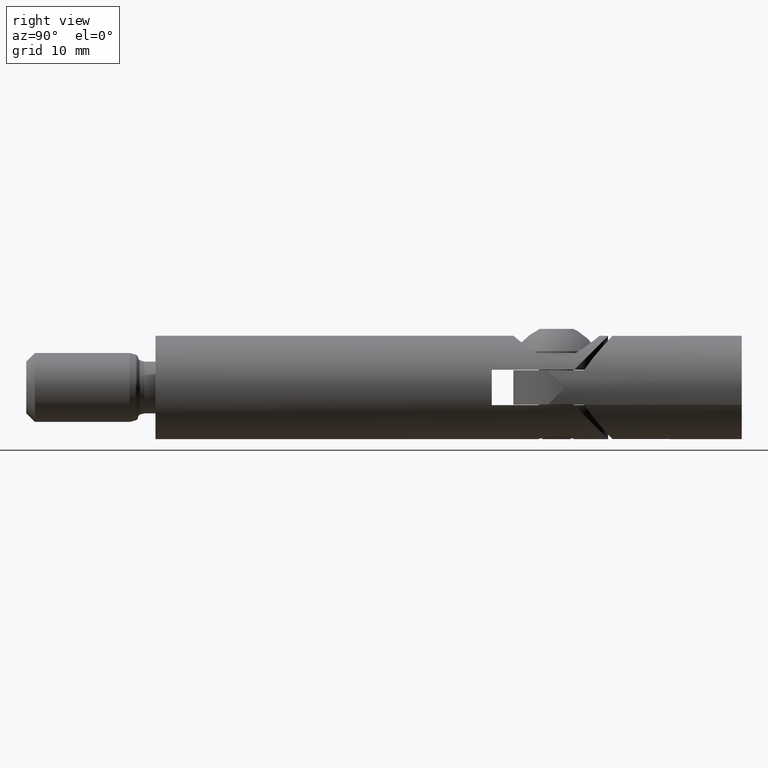
[diagram: clean part render]
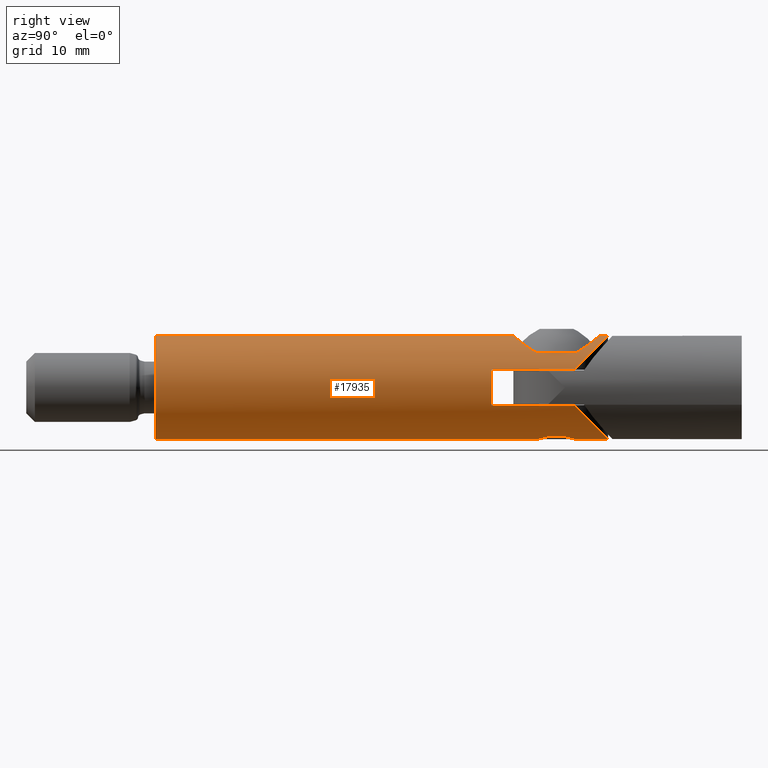
[diagram: same view with one face highlighted and labeled with its STEP entity id]
A machine part, right view. The second image highlights one B-rep face of the part: STEP entity #17935.
In plain terms, the highlighted cylindrical surface (bore or boss wall) has radius 6 mm, axis along (-0, -1, -0).
Its self-contained STEP definition (entity closure, byte-faithful):
#31 = CARTESIAN_POINT ( 'NONE',  ( -0.6799031944775870695, 44.50836888431911120, -5.962726470154969149 ) ) ;
#86 = CARTESIAN_POINT ( 'NONE',  ( 0.9337857770029903692, 44.61405670511413035, -5.928263369488837142 ) ) ;
#151 = CARTESIAN_POINT ( 'NONE',  ( -2.086440083120679301, 46.77565081770199384, -5.625620362231066984 ) ) ;
#194 = CARTESIAN_POINT ( 'NONE',  ( -5.638927202934988614, 48.54999999999994742, 2.049999999999950528 ) ) ;
#222 = CARTESIAN_POINT ( 'NONE',  ( -2.032103204105491834, 47.04751453096387337, -5.645475466979342549 ) ) ;
#510 = CARTESIAN_POINT ( 'NONE',  ( 0.9907526502935080082, 51.40715862449706464, 5.922818591520822018 ) ) ;
#524 = VECTOR ( 'NONE', #16107, 1000.000000000000000 ) ;
#561 = CARTESIAN_POINT ( 'NONE',  ( -4.272325727969628062, 43.86431156844031420, 4.223394625119321510 ) ) ;
#649 = CARTESIAN_POINT ( 'NONE',  ( 5.638927202934969962, 48.54999999999999716, -2.049999999999999378 ) ) ;
#739 = ORIENTED_EDGE ( 'NONE', *, *, #5349, .F. ) ;
#746 = CARTESIAN_POINT ( 'NONE',  ( 4.472135954999579610, 0.000000000000000000, 4.000000000000000000 ) ) ;
#810 = CARTESIAN_POINT ( 'NONE',  ( -5.638927202934969962, 48.54999999999999716, -2.049999999999999378 ) ) ;
#812 = CARTESIAN_POINT ( 'NONE',  ( -1.687899081049580197, 41.78738380356012527, 5.762565109398844143 ) ) ;
#878 = CARTESIAN_POINT ( 'NONE',  ( 4.013954880855020946, 43.51066555571640748, 4.462846586125852610 ) ) ;
#891 = DIRECTION ( 'NONE',  ( 0.000000000000000000, 0.000000000000000000, -1.000000000000000000 ) ) ;
#908 = LINE ( 'NONE', #12244, #5102 ) ;
#924 = LINE ( 'NONE', #746, #11128 ) ;
#998 = CIRCLE ( 'NONE', #14923, 6.000000000000000000 ) ;
#1016 = DIRECTION ( 'NONE',  ( 0.000000000000000000, 1.000000000000000000, 0.000000000000000000 ) ) ;
#1037 = CARTESIAN_POINT ( 'NONE',  ( 0.000000000000000000, 39.00000000000000000, 0.000000000000000000 ) ) ;
#1355 = CARTESIAN_POINT ( 'NONE',  ( 0.1399303184415937873, 48.59999999999999432, -6.000000000000000888 ) ) ;
#1465 = VERTEX_POINT ( 'NONE', #12333 ) ;
#1549 = CARTESIAN_POINT ( 'NONE',  ( 1.820638573103275260, 45.44462099601380345, -5.717652440165350569 ) ) ;
#1617 = CARTESIAN_POINT ( 'NONE',  ( -1.832704397464462120, 45.43822404822626027, -5.714346342055215189 ) ) ;
#1644 = CARTESIAN_POINT ( 'NONE',  ( 3.594557953550065577, 49.98235139120350823, 4.807646436193608430 ) ) ;
#1669 = CARTESIAN_POINT ( 'NONE',  ( -4.472135954999579610, 48.73606797749979336, 4.000000000000000000 ) ) ;
#1734 = CARTESIAN_POINT ( 'NONE',  ( -0.9349122421464529653, 48.38544873571504468, -5.928103206872798125 ) ) ;
#1822 = CARTESIAN_POINT ( 'NONE',  ( -3.097602237043298512, 50.43121023963443861, 5.142492798692936518 ) ) ;
#1842 = AXIS2_PLACEMENT_3D ( 'NONE', #1037, #11259, #11393 ) ;
#2039 = CARTESIAN_POINT ( 'NONE',  ( -5.638927202934969962, 48.54999999999999716, -2.049999999999999378 ) ) ;
#2129 = CARTESIAN_POINT ( 'NONE',  ( -4.472135954999579610, 44.26393202250020664, 4.000000000000000000 ) ) ;
#2186 = CARTESIAN_POINT ( 'NONE',  ( 2.532694194072649285, 42.18287411686598887, 5.443493514455043147 ) ) ;
#2372 = CARTESIAN_POINT ( 'NONE',  ( 4.372226723729887965, 44.06411355996083046, 4.111701916349391084 ) ) ;
#2439 = CARTESIAN_POINT ( 'NONE',  ( 3.590692757759569975, 43.01368526825292093, 4.810527154161736263 ) ) ;
#2453 = CARTESIAN_POINT ( 'NONE',  ( 5.638927202934988614, 48.54999999999994742, 2.049999999999950528 ) ) ;
#2562 = CARTESIAN_POINT ( 'NONE',  ( -3.349857744317803920, 54.84653465346534773, -8.346534653465347731 ) ) ;
#2644 = CARTESIAN_POINT ( 'NONE',  ( 1.282773082496067252, 48.16830313382645556, -5.862417377531366824 ) ) ;
#2788 = AXIS2_PLACEMENT_3D ( 'NONE', #13208, #11602, #4364 ) ;
#2844 = CARTESIAN_POINT ( 'NONE',  ( 0.6812341139050354100, 48.49118889026002677, -5.962577447961948884 ) ) ;
#2904 = CARTESIAN_POINT ( 'NONE',  ( 1.055318436482937772, 48.32072653771257364, -5.907600806349174505 ) ) ;
#2967 = CARTESIAN_POINT ( 'NONE',  ( 1.990963533487669856, 47.18170411910797668, -5.660313271408462299 ) ) ;
#2987 = VERTEX_POINT ( 'NONE', #649 ) ;
#3030 = CARTESIAN_POINT ( 'NONE',  ( -0.1370357647622472974, 44.39994796827065215, -6.000018211104131360 ) ) ;
#3088 = CARTESIAN_POINT ( 'NONE',  ( -1.991246174694213833, 47.18094977482848407, -5.660214997163483197 ) ) ;
#3150 = VERTEX_POINT ( 'NONE', #13181 ) ;
#3175 = DIRECTION ( 'NONE',  ( 0.000000000000000000, 0.000000000000000000, -1.000000000000000000 ) ) ;
#3216 = ORIENTED_EDGE ( 'NONE', *, *, #19130, .F. ) ;
#3226 = CARTESIAN_POINT ( 'NONE',  ( -0.6805891605157788904, 48.49142567777791868, -5.962656029525708057 ) ) ;
#3312 = CARTESIAN_POINT ( 'NONE',  ( -0.2409631312233156963, 51.50027404515410012, 6.000228370917403353 ) ) ;
#3368 = CARTESIAN_POINT ( 'NONE',  ( 1.911543563505188059, 51.12619348983289314, 5.691937540506647686 ) ) ;
#3440 = VERTEX_POINT ( 'NONE', #194 ) ;
#3451 = FACE_BOUND ( 'NONE', #7566, .T. ) ;
#3486 = EDGE_LOOP ( 'NONE', ( #3216 ) ) ;
#3682 = CARTESIAN_POINT ( 'NONE',  ( -2.539587668569146306, 42.18700398623336412, 5.440223127281998750 ) ) ;
#3725 = ORIENTED_EDGE ( 'NONE', *, *, #12454, .F. ) ;
#3800 = CARTESIAN_POINT ( 'NONE',  ( 1.679113494019367270, 41.78421272223527438, 5.765159873374367194 ) ) ;
#3859 = CARTESIAN_POINT ( 'NONE',  ( 5.638927202934969962, 48.54999999999999716, -2.049999999999999378 ) ) ;
#4131 = ORIENTED_EDGE ( 'NONE', *, *, #12042, .F. ) ;
#4179 = VERTEX_POINT ( 'NONE', #4490 ) ;
#4364 = DIRECTION ( 'NONE',  ( 0.000000000000000000, 0.000000000000000000, -1.000000000000000000 ) ) ;
#4411 =( BOUNDED_CURVE ( )  B_SPLINE_CURVE ( 3, ( #5134, #12816, #5384, #10038 ),
 .UNSPECIFIED., .F., .F. ) 
 B_SPLINE_CURVE_WITH_KNOTS ( ( 4, 4 ),
 ( 1.919486040928264581, 4.363699266251321873 ),
 .UNSPECIFIED. ) 
 CURVE ( )  GEOMETRIC_REPRESENTATION_ITEM ( )  RATIONAL_B_SPLINE_CURVE ( ( 1.000000000000000000, 0.5611111111111053429, 0.5611111111111053429, 1.000000000000000000 ) ) 
 REPRESENTATION_ITEM ( '' )  );
#4454 = CARTESIAN_POINT ( 'NONE',  ( 1.389511688007987633, 48.08041206481250640, -5.837728522015405375 ) ) ;
#4475 = LINE ( 'NONE', #17789, #524 ) ;
#4490 = CARTESIAN_POINT ( 'NONE',  ( 4.472135954999579610, 48.73606797749979336, 4.000000000000000000 ) ) ;
#4510 = CARTESIAN_POINT ( 'NONE',  ( -1.056301083882025260, 44.67988014643184158, -5.907416619898395282 ) ) ;
#4571 = CARTESIAN_POINT ( 'NONE',  ( -0.1399303184415973400, 48.60000000000002274, -6.000000000000002665 ) ) ;
#4633 = CARTESIAN_POINT ( 'NONE',  ( 0.5499592264330763758, 44.46854259260702946, -5.976299791409974027 ) ) ;
#4716 = CARTESIAN_POINT ( 'NONE',  ( 2.919636966049657278, 50.56536100827361224, 5.246070261389829348 ) ) ;
#4778 = CARTESIAN_POINT ( 'NONE',  ( -0.4887611480621602000, 51.48224707004437306, 5.985179456329536407 ) ) ;
#4941 = CIRCLE ( 'NONE', #2788, 6.000000000000000000 ) ;
#4965 = CARTESIAN_POINT ( 'NONE',  ( 2.330991376508196655, 42.07033412279339757, 5.533395651579978924 ) ) ;
#5033 = CARTESIAN_POINT ( 'NONE',  ( -1.911543563505188059, 41.87380651016710686, 5.691937540506647686 ) ) ;
#5047 = CARTESIAN_POINT ( 'NONE',  ( -4.013954880855020946, 49.48933444428359252, 4.462846586125852610 ) ) ;
#5102 = VECTOR ( 'NONE', #7916, 1000.000000000000000 ) ;
#5134 = CARTESIAN_POINT ( 'NONE',  ( -5.638927202934988614, 48.54999999999994742, 2.049999999999950528 ) ) ;
#5166 = CARTESIAN_POINT ( 'NONE',  ( -1.228144098935931350, 41.64722586606338695, 5.877739533197928523 ) ) ;
#5227 = CARTESIAN_POINT ( 'NONE',  ( -3.098745170681812322, 42.56964407484139201, 5.141831821744306197 ) ) ;
#5349 = EDGE_CURVE ( 'NONE', #6459, #6459, #4941, .T. ) ;
#5384 = CARTESIAN_POINT ( 'NONE',  ( 3.349857744317846997, 54.84653465346539747, 8.346534653465399245 ) ) ;
#5514 = VERTEX_POINT ( 'NONE', #13064 ) ;
#5688 = LINE ( 'NONE', #10823, #9643 ) ;
#5890 = CARTESIAN_POINT ( 'NONE',  ( 5.638927202934985061, 39.00000000000000000, 2.049999999999952305 ) ) ;
#5947 = CARTESIAN_POINT ( 'NONE',  ( -1.282893921177702845, 44.83182991030032838, -5.862382304820060952 ) ) ;
#6010 = CARTESIAN_POINT ( 'NONE',  ( -2.031781744484796093, 45.95155489427862960, -5.645590759985879892 ) ) ;
#6136 = CARTESIAN_POINT ( 'NONE',  ( -1.677594955765183249, 47.79220956276714816, -5.764126152619214238 ) ) ;
#6196 = CARTESIAN_POINT ( 'NONE',  ( 2.086195265504062313, 46.22289377560177570, -5.625710555255436063 ) ) ;
#6286 = CARTESIAN_POINT ( 'NONE',  ( 0.2522049148149563824, 51.49971963595898217, 5.999766363344011921 ) ) ;
#6334 = DIRECTION ( 'NONE',  ( -0.000000000000000000, -1.000000000000000000, -0.000000000000000000 ) ) ;
#6400 = EDGE_LOOP ( 'NONE', ( #3725, #17098, #9853, #13466, #4131, #12437, #12382, #6623 ) ) ;
#6459 = VERTEX_POINT ( 'NONE', #12130 ) ;
#6520 = CARTESIAN_POINT ( 'NONE',  ( 1.904319892558795191, 41.87085036666030646, 5.694344034310241831 ) ) ;
#6620 = EDGE_CURVE ( 'NONE', #2987, #13338, #9278, .T. ) ;
#6623 = ORIENTED_EDGE ( 'NONE', *, *, #10537, .F. ) ;
#7029 = CARTESIAN_POINT ( 'NONE',  ( 3.880325838228253943, 43.33921903976218459, 4.580100148548351235 ) ) ;
#7424 = CARTESIAN_POINT ( 'NONE',  ( 2.100097390676812115, 46.36328112473236729, -5.620461810260681368 ) ) ;
#7487 = CARTESIAN_POINT ( 'NONE',  ( 2.031893931028326161, 47.04825545378527352, -5.645550960297864407 ) ) ;
#7566 = EDGE_LOOP ( 'NONE', ( #9722, #9993, #10242, #10204 ) ) ;
#7568 = CARTESIAN_POINT ( 'NONE',  ( 0.000000000000000000, 0.000000000000000000, 0.000000000000000000 ) ) ;
#7573 = CARTESIAN_POINT ( 'NONE',  ( 4.472135954999579610, 48.73606797749979336, 4.000000000000000000 ) ) ;
#7619 = CARTESIAN_POINT ( 'NONE',  ( 1.833344241584954348, 47.55994060333274831, -5.714120875558125867 ) ) ;
#7680 = CARTESIAN_POINT ( 'NONE',  ( 1.677500159237451438, 47.79219708969701941, -5.764135783203783170 ) ) ;
#7765 = CARTESIAN_POINT ( 'NONE',  ( 0.4991232668755348767, 51.48123203078346677, 5.984333450484840888 ) ) ;
#7828 = CARTESIAN_POINT ( 'NONE',  ( -4.472135954999579610, 48.73606797749979336, 4.000000000000000000 ) ) ;
#7916 = DIRECTION ( 'NONE',  ( 0.000000000000000000, 1.000000000000000000, 0.000000000000000000 ) ) ;
#7956 = CARTESIAN_POINT ( 'NONE',  ( -3.590692757759569975, 49.98631473174707196, 4.810527154161736263 ) ) ;
#8046 = CARTESIAN_POINT ( 'NONE',  ( 4.472135954999579610, 44.26393202250020664, 4.000000000000000000 ) ) ;
#8076 = FACE_OUTER_BOUND ( 'NONE', #11004, .T. ) ;
#8084 = CARTESIAN_POINT ( 'NONE',  ( -2.338671150420104539, 42.07436080879348594, 5.530168985700136375 ) ) ;
#8113 = CIRCLE ( 'NONE', #1842, 6.000000000000000000 ) ;
#8148 = CARTESIAN_POINT ( 'NONE',  ( 1.217818505035710652, 41.64459168928933508, 5.879915694987170482 ) ) ;
#8727 = EDGE_CURVE ( 'NONE', #14847, #11536, #16561, .T. ) ;
#8933 = CARTESIAN_POINT ( 'NONE',  ( 1.388251816607984024, 44.91842404913551690, -5.838037281970521519 ) ) ;
#8994 = CARTESIAN_POINT ( 'NONE',  ( 1.992054000542900827, 45.82111217453264373, -5.659936331073161853 ) ) ;
#9124 = CARTESIAN_POINT ( 'NONE',  ( 1.885684773470328590, 45.56546227697916862, -5.696257661656735749 ) ) ;
#9129 = VECTOR ( 'NONE', #6334, 1000.000000000000000 ) ;
#9145 = CARTESIAN_POINT ( 'NONE',  ( 4.029132544682178185, 49.49275179565078275, 4.461315443328744301 ) ) ;
#9184 = CARTESIAN_POINT ( 'NONE',  ( -2.085970634324533002, 46.22133244905961647, -5.625794041661614564 ) ) ;
#9209 = CARTESIAN_POINT ( 'NONE',  ( -1.904319892558795191, 51.12914963333970064, 5.694344034310241831 ) ) ;
#9278 =( BOUNDED_CURVE ( )  B_SPLINE_CURVE ( 3, ( #3859, #14120, #2562, #810 ),
 .UNSPECIFIED., .F., .F. ) 
 B_SPLINE_CURVE_WITH_KNOTS ( ( 4, 4 ),
 ( 1.919486040928273241, 4.363699266251312991 ),
 .UNSPECIFIED. ) 
 CURVE ( )  GEOMETRIC_REPRESENTATION_ITEM ( )  RATIONAL_B_SPLINE_CURVE ( ( 1.000000000000000000, 0.5611111111111108940, 0.5611111111111108940, 1.000000000000000000 ) ) 
 REPRESENTATION_ITEM ( '' )  );
#9393 = CARTESIAN_POINT ( 'NONE',  ( 1.687899081049580197, 51.21261619643985341, 5.762565109398844143 ) ) ;
#9542 = DIRECTION ( 'NONE',  ( 0.000000000000000000, 1.000000000000000000, 0.000000000000000000 ) ) ;
#9576 = CARTESIAN_POINT ( 'NONE',  ( 0.2409631312233156963, 41.49972595484589988, 6.000228370917403353 ) ) ;
#9643 = VECTOR ( 'NONE', #9542, 1000.000000000000000 ) ;
#9661 = AXIS2_PLACEMENT_3D ( 'NONE', #7568, #17888, #3175 ) ;
#9692 = CARTESIAN_POINT ( 'NONE',  ( -4.029132544682178185, 43.50724820434923146, 4.461315443328744301 ) ) ;
#9722 = ORIENTED_EDGE ( 'NONE', *, *, #8727, .F. ) ;
#9753 = CARTESIAN_POINT ( 'NONE',  ( 3.097602237043298512, 42.56878976036556139, 5.142492798692936518 ) ) ;
#9764 = CARTESIAN_POINT ( 'NONE',  ( 0.000000000000000000, 39.00000000000000000, 0.000000000000000000 ) ) ;
#9853 = ORIENTED_EDGE ( 'NONE', *, *, #15534, .F. ) ;
#9860 = DIRECTION ( 'NONE',  ( -0.000000000000000000, -1.000000000000000000, -0.000000000000000000 ) ) ;
#9993 = ORIENTED_EDGE ( 'NONE', *, *, #16527, .F. ) ;
#10006 = CARTESIAN_POINT ( 'NONE',  ( 4.472135954999579610, 44.26393202250020664, 4.000000000000000000 ) ) ;
#10038 = CARTESIAN_POINT ( 'NONE',  ( 5.638927202934988614, 48.54999999999994742, 2.049999999999950528 ) ) ;
#10204 = ORIENTED_EDGE ( 'NONE', *, *, #15286, .F. ) ;
#10242 = ORIENTED_EDGE ( 'NONE', *, *, #15974, .F. ) ;
#10280 = CARTESIAN_POINT ( 'NONE',  ( 0.2773110508732148372, 48.58615554988295315, -5.995114773543331665 ) ) ;
#10402 = CARTESIAN_POINT ( 'NONE',  ( 2.032077313730792145, 45.95258759930700876, -5.645484189008470821 ) ) ;
#10465 = CARTESIAN_POINT ( 'NONE',  ( 0.6810570200218732939, 44.50879450474418064, -5.962585327761364518 ) ) ;
#10466 = VERTEX_POINT ( 'NONE', #2453 ) ;
#10537 = EDGE_CURVE ( 'NONE', #3150, #1465, #998, .T. ) ;
#10587 = CARTESIAN_POINT ( 'NONE',  ( -1.054979748196502198, 48.32088326621439478, -5.907653145361189573 ) ) ;
#10671 = CARTESIAN_POINT ( 'NONE',  ( -1.679113494019367270, 51.21578727776472562, 5.765159873374367194 ) ) ;
#10803 = CARTESIAN_POINT ( 'NONE',  ( -2.532694194072649285, 50.81712588313400403, 5.443493514455043147 ) ) ;
#10823 = CARTESIAN_POINT ( 'NONE',  ( -5.638927202934985061, 2.667137344314286673E-16, 2.049999999999957634 ) ) ;
#10864 = CARTESIAN_POINT ( 'NONE',  ( -4.372226723729887965, 48.93588644003917665, 4.111701916349391084 ) ) ;
#11004 = EDGE_LOOP ( 'NONE', ( #739 ) ) ;
#11047 = CARTESIAN_POINT ( 'NONE',  ( 0.4887611480621602000, 41.51775292995563404, 5.985179456329536407 ) ) ;
#11128 = VECTOR ( 'NONE', #16038, 1000.000000000000000 ) ;
#11171 = CARTESIAN_POINT ( 'NONE',  ( 0.9800564602597400254, 41.59070650077591580, 5.924588586478162888 ) ) ;
#11259 = DIRECTION ( 'NONE',  ( 0.000000000000000000, 1.000000000000000000, 0.000000000000000000 ) ) ;
#11295 = CARTESIAN_POINT ( 'NONE',  ( 4.259931322625759798, 43.87303610001354315, 4.228689934642518189 ) ) ;
#11310 = FACE_BOUND ( 'NONE', #3486, .T. ) ;
#11393 = DIRECTION ( 'NONE',  ( -8.881784197001252323E-16, 0.000000000000000000, -1.000000000000000000 ) ) ;
#11414 = EDGE_CURVE ( 'NONE', #1465, #3440, #5688, .T. ) ;
#11416 = B_SPLINE_CURVE_WITH_KNOTS ( 'NONE', 3,
 ( #16052, #1355, #10280, #11695, #2844, #13175, #2904, #2644, #4454, #7680, #7619, #2967, #7487, #13291, #17803, #7424, #6196, #10402, #8994, #9124, #1549, #11947, #15018, #8933, #16493, #17931, #86, #10465, #4633, #11886, #14956, #3030, #13358, #17742, #31, #11822, #4510, #5947, #14772, #16239, #1617, #14829, #6010, #9184, #13486, #16302, #151, #222, #3088, #12078, #6136, #16432, #18002, #10587, #1734, #3226, #13426, #13555, #4571, #14884 ),
 .UNSPECIFIED., .T., .F.,
 ( 4, 2, 2, 2, 2, 2, 2, 2, 2, 2, 2, 2, 2, 2, 2, 2, 2, 2, 2, 2, 2, 2, 2, 2, 2, 2, 2, 2, 2, 4 ),
 ( 0.000000000000000000, 0.0004135997285890859361, 0.0008271994571781718722, 0.001240799185767257808, 0.001654398914356343744, 0.002481598371534516050, 0.002895198100123611527, 0.003308797828712707438, 0.003722397557301802915, 0.004135997285890898392, 0.004549597014479994303, 0.004963196743069089346, 0.005376796471658184390, 0.005790396200247280301, 0.006203995928836376211, 0.006617595657425472122, 0.007031195386014568033, 0.007444795114603664811, 0.007858394843192759854, 0.008271994571781857500, 0.009099194028960035444, 0.009512793757549133089, 0.009926393486138229000, 0.01033999321472732838, 0.01075359294331642429, 0.01158079240049462132, 0.01199439212908371896, 0.01240799185767281661, 0.01282159158626191425, 0.01323519131485101190 ),
 .UNSPECIFIED. ) ;
#11536 = VERTEX_POINT ( 'NONE', #8046 ) ;
#11602 = DIRECTION ( 'NONE',  ( -0.000000000000000000, -1.000000000000000000, -0.000000000000000000 ) ) ;
#11646 = EDGE_CURVE ( 'NONE', #3440, #10466, #4411, .T. ) ;
#11695 = CARTESIAN_POINT ( 'NONE',  ( 0.5472454995192390648, 48.53210943615241746, -5.976522812652003580 ) ) ;
#11822 = CARTESIAN_POINT ( 'NONE',  ( -0.9335114993840598618, 44.61388782535958342, -5.928316084038138811 ) ) ;
#11886 = CARTESIAN_POINT ( 'NONE',  ( 0.2777402781516143393, 44.41382294934422958, -5.995120906657179560 ) ) ;
#11947 = CARTESIAN_POINT ( 'NONE',  ( 1.669065092636243364, 45.21829357009120542, -5.763722404570114755 ) ) ;
#11972 = CARTESIAN_POINT ( 'NONE',  ( 3.098745170681812322, 50.43035592515862220, 5.141831821744306197 ) ) ;
#12031 = VERTEX_POINT ( 'NONE', #5890 ) ;
#12037 = CARTESIAN_POINT ( 'NONE',  ( 2.539587668569146306, 50.81299601376660746, 5.440223127281998750 ) ) ;
#12042 = EDGE_CURVE ( 'NONE', #10466, #12031, #12800, .T. ) ;
#12078 = CARTESIAN_POINT ( 'NONE',  ( -1.833295944888416074, 47.56020831667602522, -5.714140928245531548 ) ) ;
#12130 = CARTESIAN_POINT ( 'NONE',  ( 0.000000000000000000, 0.000000000000000000, -6.000000000000000000 ) ) ;
#12244 = CARTESIAN_POINT ( 'NONE',  ( 5.638927202935056116, -9.957312752105728874E-15, -2.049999999999763123 ) ) ;
#12283 = CARTESIAN_POINT ( 'NONE',  ( -3.880325838228253943, 49.66078096023782251, 4.580100148548351235 ) ) ;
#12333 = CARTESIAN_POINT ( 'NONE',  ( -5.638927202934985061, 39.00000000000000000, 2.049999999999952305 ) ) ;
#12382 = ORIENTED_EDGE ( 'NONE', *, *, #11414, .F. ) ;
#12437 = ORIENTED_EDGE ( 'NONE', *, *, #11646, .F. ) ;
#12454 = EDGE_CURVE ( 'NONE', #13338, #3150, #4475, .T. ) ;
#12469 = CARTESIAN_POINT ( 'NONE',  ( -3.436952885828491677, 42.86169349946317908, 4.922195747481139527 ) ) ;
#12531 = CARTESIAN_POINT ( 'NONE',  ( 2.915557178308604058, 42.43162905925137807, 5.248398599822289512 ) ) ;
#12800 = LINE ( 'NONE', #14656, #9129 ) ;
#12816 = CARTESIAN_POINT ( 'NONE',  ( -3.349857744317848329, 54.84653465346539747, 8.346534653465399245 ) ) ;
#13064 = CARTESIAN_POINT ( 'NONE',  ( 5.638927202934987726, 39.00000000000000000, -2.049999999999952305 ) ) ;
#13175 = CARTESIAN_POINT ( 'NONE',  ( 0.9351004188317552090, 48.38533825117500697, -5.928068568057646814 ) ) ;
#13181 = CARTESIAN_POINT ( 'NONE',  ( -5.638927202934987726, 39.00000000000000000, -2.049999999999952305 ) ) ;
#13208 = CARTESIAN_POINT ( 'NONE',  ( 0.000000000000000000, 0.000000000000000000, 0.000000000000000000 ) ) ;
#13210 = VERTEX_POINT ( 'NONE', #1669 ) ;
#13291 = CARTESIAN_POINT ( 'NONE',  ( 2.086293483836126672, 46.77668843282280164, -5.625674900985019988 ) ) ;
#13338 = VERTEX_POINT ( 'NONE', #2039 ) ;
#13358 = CARTESIAN_POINT ( 'NONE',  ( -0.2760850920997844904, 44.41359765621522371, -5.995199655506465497 ) ) ;
#13426 = CARTESIAN_POINT ( 'NONE',  ( -0.5468734143387967706, 48.53219660665315160, -5.976552651432203156 ) ) ;
#13466 = ORIENTED_EDGE ( 'NONE', *, *, #15826, .F. ) ;
#13486 = CARTESIAN_POINT ( 'NONE',  ( -2.100005955277878478, 46.36169280154613404, -5.620495973474038287 ) ) ;
#13555 = CARTESIAN_POINT ( 'NONE',  ( -0.2773106023340098369, 48.58614295033591901, -5.995110587510874112 ) ) ;
#13579 = CARTESIAN_POINT ( 'NONE',  ( 3.436952885828491677, 50.13830650053679960, 4.922195747481139527 ) ) ;
#13649 = CARTESIAN_POINT ( 'NONE',  ( -2.915557178308604058, 50.56837094074862904, 5.248398599822289512 ) ) ;
#13710 = CARTESIAN_POINT ( 'NONE',  ( 2.338671150420104539, 50.92563919120649985, 5.530168985700136375 ) ) ;
#13746 = CARTESIAN_POINT ( 'NONE',  ( 0.000000000000000000, 48.59999999999999432, -6.000000000000000000 ) ) ;
#13884 = CARTESIAN_POINT ( 'NONE',  ( -3.594557953550065577, 43.01764860879648467, 4.807646436193608430 ) ) ;
#13892 = CARTESIAN_POINT ( 'NONE',  ( -3.434699158272676023, 50.14038394394096798, 4.923739787570555748 ) ) ;
#13941 = CARTESIAN_POINT ( 'NONE',  ( -0.9907526502935080082, 41.59284137550291405, 5.922818591520822018 ) ) ;
#14120 = CARTESIAN_POINT ( 'NONE',  ( 3.349857744317805253, 54.84653465346534773, -8.346534653465345954 ) ) ;
#14122 = CARTESIAN_POINT ( 'NONE',  ( 3.434699158272676023, 42.85961605605903912, 4.923739787570555748 ) ) ;
#14656 = CARTESIAN_POINT ( 'NONE',  ( 5.638927202934985061, 2.667137344314286673E-16, 2.049999999999957634 ) ) ;
#14772 = CARTESIAN_POINT ( 'NONE',  ( -1.388036528353561394, 44.91817139761543132, -5.838097357248575925 ) ) ;
#14829 = CARTESIAN_POINT ( 'NONE',  ( -1.991790499454959340, 45.82043101796536888, -5.660027428170495867 ) ) ;
#14847 = VERTEX_POINT ( 'NONE', #18706 ) ;
#14884 = CARTESIAN_POINT ( 'NONE',  ( 2.032879073410320814E-16, 48.60000000000000853, -6.000000000000001776 ) ) ;
#14923 = AXIS2_PLACEMENT_3D ( 'NONE', #9764, #1016, #891 ) ;
#14956 = CARTESIAN_POINT ( 'NONE',  ( 0.1386258689238670794, 44.40005233273309670, -5.999981683544563182 ) ) ;
#15018 = CARTESIAN_POINT ( 'NONE',  ( 1.581278183707608420, 45.11140902336267544, -5.788737489101015044 ) ) ;
#15101 = CARTESIAN_POINT ( 'NONE',  ( -1.217818505035710652, 51.35540831071067913, 5.879915694987170482 ) ) ;
#15196 = CYLINDRICAL_SURFACE ( 'NONE', #9661, 6.000000000000000000 ) ;
#15218 = FACE_OUTER_BOUND ( 'NONE', #6400, .T. ) ;
#15286 = EDGE_CURVE ( 'NONE', #11536, #4179, #924, .T. ) ;
#15344 = CARTESIAN_POINT ( 'NONE',  ( -0.4991232668755348767, 41.51876796921652613, 5.984333450484840888 ) ) ;
#15354 = CARTESIAN_POINT ( 'NONE',  ( -4.259931322625759798, 49.12696389998645685, 4.228689934642518189 ) ) ;
#15534 = EDGE_CURVE ( 'NONE', #5514, #2987, #908, .T. ) ;
#15689 = VECTOR ( 'NONE', #9860, 1000.000000000000000 ) ;
#15826 = EDGE_CURVE ( 'NONE', #12031, #5514, #8113, .T. ) ;
#15974 = EDGE_CURVE ( 'NONE', #4179, #13210, #18305, .T. ) ;
#16038 = DIRECTION ( 'NONE',  ( 0.000000000000000000, 1.000000000000000000, 0.000000000000000000 ) ) ;
#16052 = CARTESIAN_POINT ( 'NONE',  ( 2.032879073410320814E-16, 48.60000000000000853, -6.000000000000001776 ) ) ;
#16107 = DIRECTION ( 'NONE',  ( -0.000000000000000000, -1.000000000000000000, -0.000000000000000000 ) ) ;
#16239 = CARTESIAN_POINT ( 'NONE',  ( -1.679082131009264955, 45.20926698237463626, -5.763747723864387495 ) ) ;
#16302 = CARTESIAN_POINT ( 'NONE',  ( -2.099994040831218989, 46.63848798438885979, -5.620500425096844666 ) ) ;
#16432 = CARTESIAN_POINT ( 'NONE',  ( -1.388843066986833241, 48.08102736621206930, -5.837892061353309181 ) ) ;
#16493 = CARTESIAN_POINT ( 'NONE',  ( 1.283385613909034495, 44.83219564512045707, -5.862276931221732212 ) ) ;
#16517 = CARTESIAN_POINT ( 'NONE',  ( -0.9800564602597400254, 51.40929349922409131, 5.924588586478162888 ) ) ;
#16527 = EDGE_CURVE ( 'NONE', #13210, #14847, #18463, .T. ) ;
#16561 = B_SPLINE_CURVE_WITH_KNOTS ( 'NONE', 3,
 ( #2129, #561, #9692, #13884, #12469, #5227, #18320, #3682, #8084, #5033, #812, #5166, #13941, #15344, #18380, #9576, #11047, #11171, #8148, #3800, #6520, #4965, #2186, #12531, #9753, #14122, #2439, #7029, #878, #11295, #2372, #10006 ),
 .UNSPECIFIED., .F., .F.,
 ( 4, 2, 2, 2, 2, 2, 2, 2, 2, 2, 2, 2, 2, 2, 2, 4 ),
 ( 0.000000000000000000, 0.001477833795125595802, 0.002216750692688400966, 0.002955667590251206348, 0.003694584487814011296, 0.004433501385376816678, 0.005172418282939622060, 0.005911335180502426574, 0.006650252078065232823, 0.007389168975628038205, 0.008128085873190844454, 0.008867002770753650703, 0.009605919668316455218, 0.01034483656587926147, 0.01108375346344206772, 0.01182267036100487223 ),
 .UNSPECIFIED. ) ;
#16583 = CARTESIAN_POINT ( 'NONE',  ( 1.228144098935931350, 51.35277413393659884, 5.877739533197928523 ) ) ;
#17098 = ORIENTED_EDGE ( 'NONE', *, *, #6620, .F. ) ;
#17291 = VERTEX_POINT ( 'NONE', #13746 ) ;
#17742 = CARTESIAN_POINT ( 'NONE',  ( -0.5485102145950162544, 44.46814511770273981, -5.976435261253111975 ) ) ;
#17789 = CARTESIAN_POINT ( 'NONE',  ( -5.638927202935056116, -9.957312752105728874E-15, -2.049999999999763123 ) ) ;
#17803 = CARTESIAN_POINT ( 'NONE',  ( 2.099901555218825600, 46.63969452233914126, -5.620534980703876471 ) ) ;
#17888 = DIRECTION ( 'NONE',  ( -0.000000000000000000, -1.000000000000000000, -0.000000000000000000 ) ) ;
#17931 = CARTESIAN_POINT ( 'NONE',  ( 1.056572057962534172, 44.68002596543884408, -5.907370391185570391 ) ) ;
#17935 = ADVANCED_FACE ( 'NONE', ( #11310, #3451, #15218, #8076 ), #15196, .T. ) ;
#17958 = CARTESIAN_POINT ( 'NONE',  ( 4.272325727969628062, 49.13568843155970711, 4.223394625119321510 ) ) ;
#18002 = CARTESIAN_POINT ( 'NONE',  ( -1.281623710314723219, 48.16914313449855456, -5.862660541099055322 ) ) ;
#18202 = CARTESIAN_POINT ( 'NONE',  ( -2.330991376508196655, 50.92966587720660954, 5.533395651579978924 ) ) ;
#18305 = B_SPLINE_CURVE_WITH_KNOTS ( 'NONE', 3,
 ( #7573, #17958, #9145, #1644, #13579, #11972, #4716, #12037, #13710, #3368, #9393, #16583, #510, #7765, #6286, #3312, #4778, #16517, #15101, #10671, #9209, #18202, #10803, #13649, #1822, #13892, #7956, #12283, #5047, #15354, #10864, #7828 ),
 .UNSPECIFIED., .F., .F.,
 ( 4, 2, 2, 2, 2, 2, 2, 2, 2, 2, 2, 2, 2, 2, 2, 4 ),
 ( 0.000000000000000000, 0.001477833795125595802, 0.002216750692688400966, 0.002955667590251206348, 0.003694584487814011296, 0.004433501385376816678, 0.005172418282939622060, 0.005911335180502426574, 0.006650252078065232823, 0.007389168975628038205, 0.008128085873190844454, 0.008867002770753650703, 0.009605919668316455218, 0.01034483656587926147, 0.01108375346344206772, 0.01182267036100487223 ),
 .UNSPECIFIED. ) ;
#18320 = CARTESIAN_POINT ( 'NONE',  ( -2.919636966049657278, 42.43463899172636644, 5.246070261389829348 ) ) ;
#18380 = CARTESIAN_POINT ( 'NONE',  ( -0.2522049148149563824, 41.50028036404098941, 5.999766363344011921 ) ) ;
#18463 = LINE ( 'NONE', #18501, #15689 ) ;
#18501 = CARTESIAN_POINT ( 'NONE',  ( -4.472135954999579610, 0.000000000000000000, 4.000000000000000000 ) ) ;
#18706 = CARTESIAN_POINT ( 'NONE',  ( -4.472135954999579610, 44.26393202250020664, 4.000000000000000000 ) ) ;
#19130 = EDGE_CURVE ( 'NONE', #17291, #17291, #11416, .T. ) ;